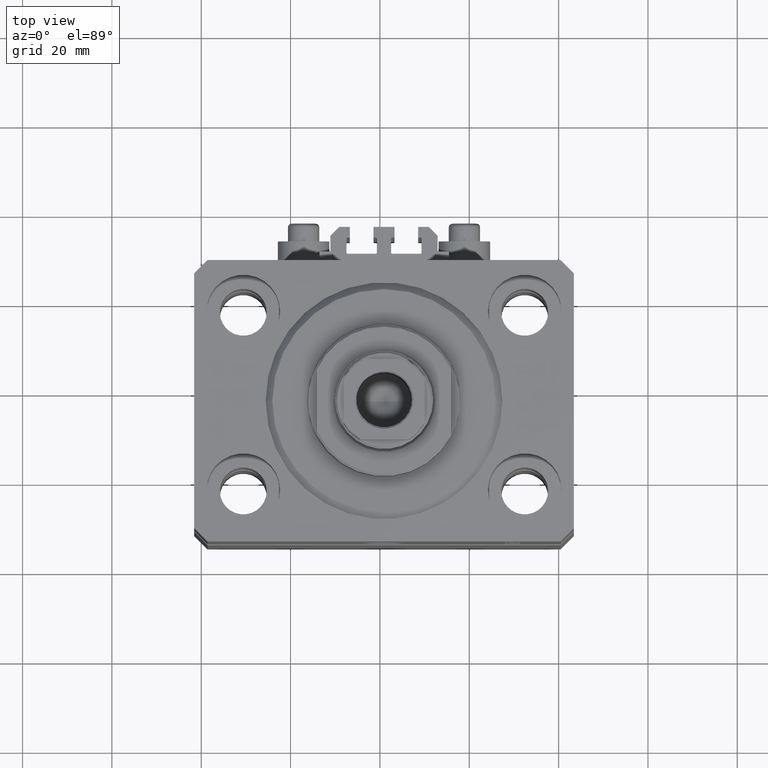
[diagram: clean part render]
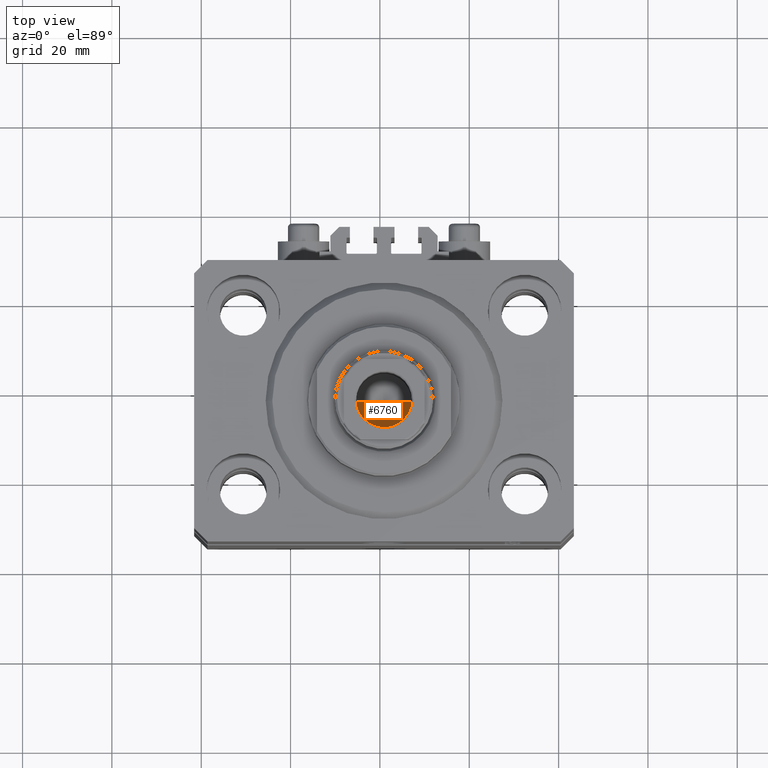
[diagram: same view with one face highlighted and labeled with its STEP entity id]
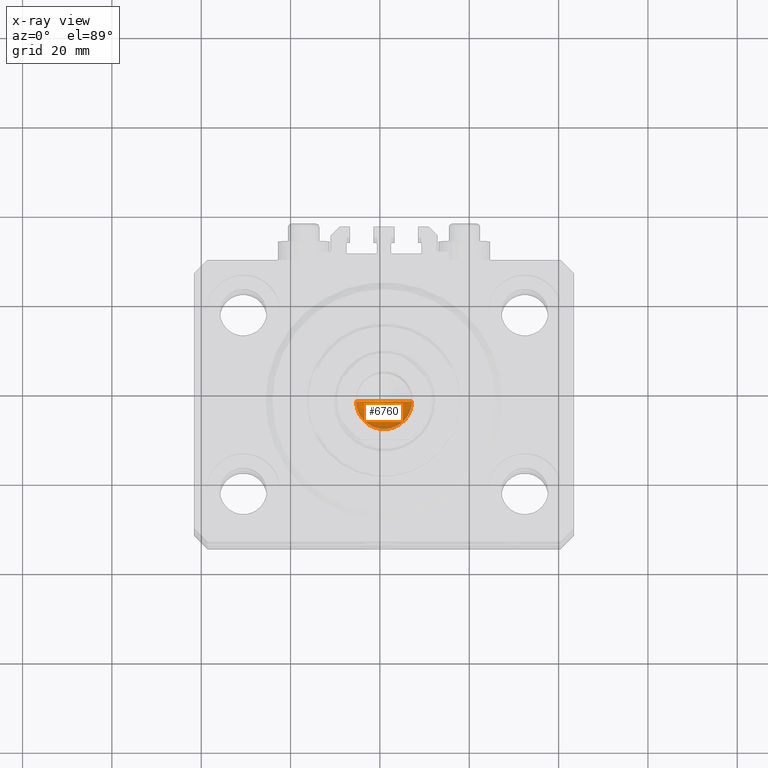
[diagram: x-ray of the same camera — body ghosted, the highlighted face saturated]
A machine part, top view. The second image highlights one B-rep face of the part: STEP entity #6760.
The next image is the same camera in x-ray: the body ghosted, the highlighted face saturated — about 9% of this face is hidden behind the body in this view.
In plain terms, the highlighted conical surface has half-angle 59 deg.
Its self-contained STEP definition (entity closure, byte-faithful):
#149 = VECTOR ( 'NONE', #1702, 1000.000000000000000 ) ;
#281 = CONICAL_SURFACE ( 'NONE', #27500, 6.249999999999993783, 1.029744258676652979 ) ;
#1702 = DIRECTION ( 'NONE',  ( -0.8571673007021115565, 1.049727191138617710E-16, 0.5150380749100554878 ) ) ;
#2716 = CARTESIAN_POINT ( 'NONE',  ( -7.434177670704979810E-15, 0.000000000000000000, 79.84462113107774428 ) ) ;
#3133 = EDGE_CURVE ( 'NONE', #9432, #34779, #27494, .T. ) ;
#4162 = DIRECTION ( 'NONE',  ( 1.000000000000000000, 0.000000000000000000, 0.000000000000000000 ) ) ;
#6491 = EDGE_LOOP ( 'NONE', ( #6613, #17738, #26767 ) ) ;
#6613 = ORIENTED_EDGE ( 'NONE', *, *, #37382, .F. ) ;
#6760 = ADVANCED_FACE ( 'NONE', ( #22895 ), #281, .F. ) ;
#7820 = CARTESIAN_POINT ( 'NONE',  ( 0.000000000000000000, 0.000000000000000000, 83.60000000000000853 ) ) ;
#8130 = EDGE_CURVE ( 'NONE', #34779, #22232, #15860, .T. ) ;
#9432 = VERTEX_POINT ( 'NONE', #2716 ) ;
#15256 = LINE ( 'NONE', #26923, #43976 ) ;
#15860 = CIRCLE ( 'NONE', #43064, 6.249999999999993783 ) ;
#17738 = ORIENTED_EDGE ( 'NONE', *, *, #3133, .T. ) ;
#19262 = DIRECTION ( 'NONE',  ( -0.000000000000000000, -0.000000000000000000, 1.000000000000000000 ) ) ;
#21948 = DIRECTION ( 'NONE',  ( -0.000000000000000000, -0.000000000000000000, 1.000000000000000000 ) ) ;
#22232 = VERTEX_POINT ( 'NONE', #32696 ) ;
#22895 = FACE_OUTER_BOUND ( 'NONE', #6491, .T. ) ;
#23273 = DIRECTION ( 'NONE',  ( 0.8571673007021115565, 0.000000000000000000, 0.5150380749100554878 ) ) ;
#26767 = ORIENTED_EDGE ( 'NONE', *, *, #8130, .T. ) ;
#26923 = CARTESIAN_POINT ( 'NONE',  ( 6.249999999999993783, 0.000000000000000000, 83.60000000000000853 ) ) ;
#27494 = LINE ( 'NONE', #35035, #149 ) ;
#27500 = AXIS2_PLACEMENT_3D ( 'NONE', #7820, #19262, #4162 ) ;
#32696 = CARTESIAN_POINT ( 'NONE',  ( 6.249999999999993783, 0.000000000000000000, 83.60000000000000853 ) ) ;
#34779 = VERTEX_POINT ( 'NONE', #47305 ) ;
#35035 = CARTESIAN_POINT ( 'NONE',  ( -6.249999999999993783, 7.654042494670949718E-16, 83.60000000000000853 ) ) ;
#37382 = EDGE_CURVE ( 'NONE', #9432, #22232, #15256, .T. ) ;
#41575 = DIRECTION ( 'NONE',  ( 1.000000000000000000, 0.000000000000000000, 0.000000000000000000 ) ) ;
#41824 = CARTESIAN_POINT ( 'NONE',  ( 0.000000000000000000, 0.000000000000000000, 83.60000000000000853 ) ) ;
#43064 = AXIS2_PLACEMENT_3D ( 'NONE', #41824, #21948, #41575 ) ;
#43976 = VECTOR ( 'NONE', #23273, 1000.000000000000000 ) ;
#47305 = CARTESIAN_POINT ( 'NONE',  ( -6.249999999999993783, 7.654042494670949718E-16, 83.60000000000000853 ) ) ;